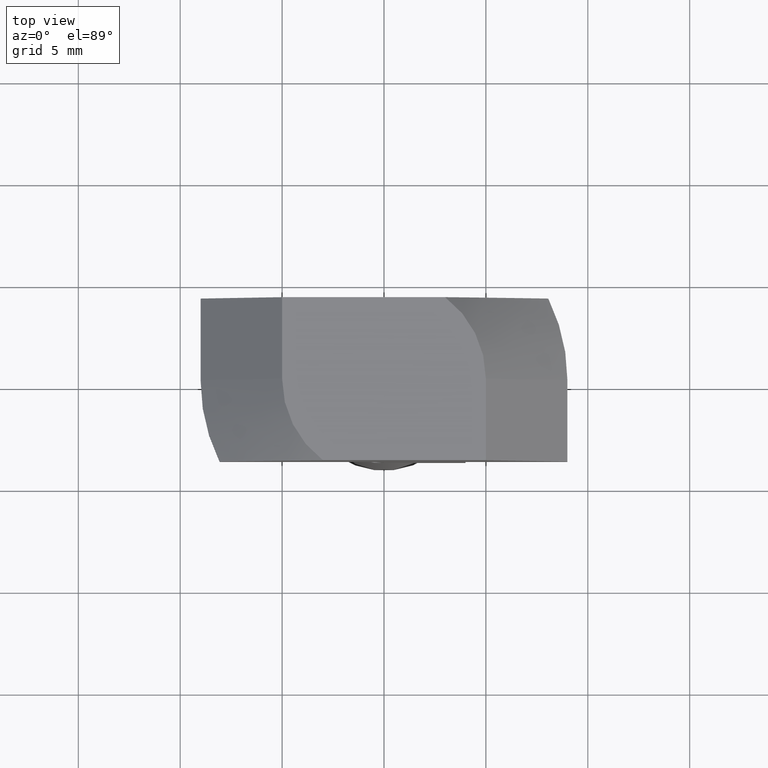
[diagram: clean part render]
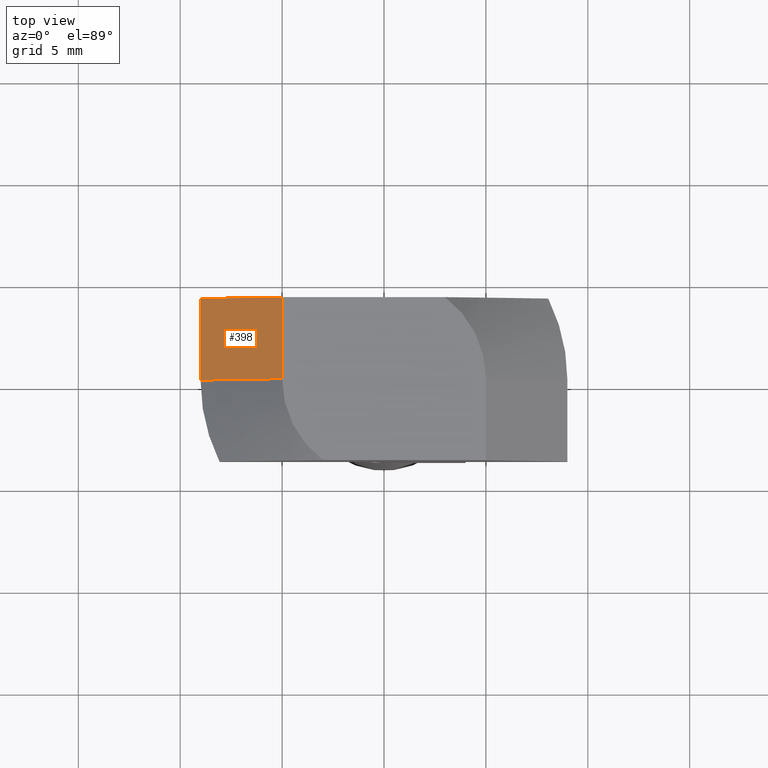
[diagram: same view with one face highlighted and labeled with its STEP entity id]
A machine part, top view. The second image highlights one B-rep face of the part: STEP entity #398.
In plain terms, the highlighted planar face has unit normal (-0.7071, 0, 0.7071).
Its self-contained STEP definition (entity closure, byte-faithful):
#27=PLANE('',#459);
#56=FACE_OUTER_BOUND('',#80,.T.);
#80=EDGE_LOOP('',(#345,#346,#347,#348));
#111=LINE('',#675,#149);
#116=LINE('',#686,#154);
#118=LINE('',#690,#156);
#119=LINE('',#691,#157);
#149=VECTOR('',#554,10.);
#154=VECTOR('',#565,10.);
#156=VECTOR('',#569,10.);
#157=VECTOR('',#570,10.);
#203=VERTEX_POINT('',#665);
#205=VERTEX_POINT('',#673);
#208=VERTEX_POINT('',#685);
#209=VERTEX_POINT('',#689);
#254=EDGE_CURVE('',#205,#203,#111,.T.);
#259=EDGE_CURVE('',#208,#203,#116,.T.);
#261=EDGE_CURVE('',#209,#205,#118,.T.);
#262=EDGE_CURVE('',#208,#209,#119,.T.);
#345=ORIENTED_EDGE('',*,*,#254,.F.);
#346=ORIENTED_EDGE('',*,*,#261,.F.);
#347=ORIENTED_EDGE('',*,*,#262,.F.);
#348=ORIENTED_EDGE('',*,*,#259,.T.);
#398=ADVANCED_FACE('',(#56),#27,.T.);
#459=AXIS2_PLACEMENT_3D('',#688,#567,#568);
#554=DIRECTION('',(-0.707106781186548,0.,-0.707106781186548));
#565=DIRECTION('',(0.,-1.,0.));
#567=DIRECTION('center_axis',(-0.707106781186548,0.,0.707106781186548));
#568=DIRECTION('ref_axis',(0.707106781186548,0.,0.707106781186548));
#569=DIRECTION('',(0.,-1.,0.));
#570=DIRECTION('',(0.707106781186548,0.,0.707106781186548));
#665=CARTESIAN_POINT('',(-9.,0.,-4.));
#673=CARTESIAN_POINT('',(-5.,0.,0.));
#675=CARTESIAN_POINT('',(-7.,0.,-2.));
#685=CARTESIAN_POINT('',(-9.,4.,-4.));
#686=CARTESIAN_POINT('',(-9.,0.,-4.));
#688=CARTESIAN_POINT('Origin',(-9.,0.,-4.));
#689=CARTESIAN_POINT('',(-5.,4.,0.));
#690=CARTESIAN_POINT('',(-5.,0.,4.00551059515339E-16));
#691=CARTESIAN_POINT('',(-5.,4.,4.00551059515339E-16));